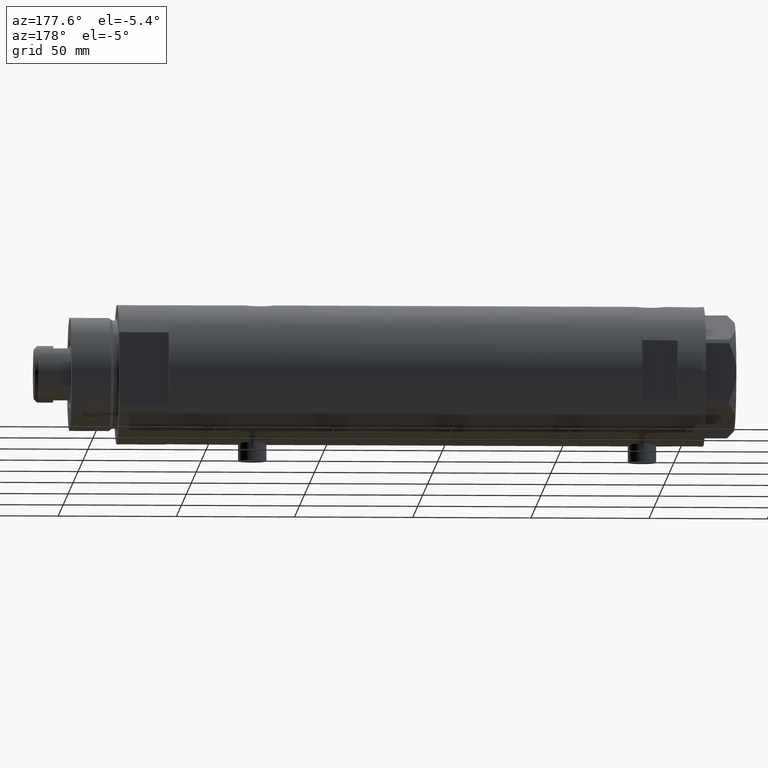
[diagram: clean part render]
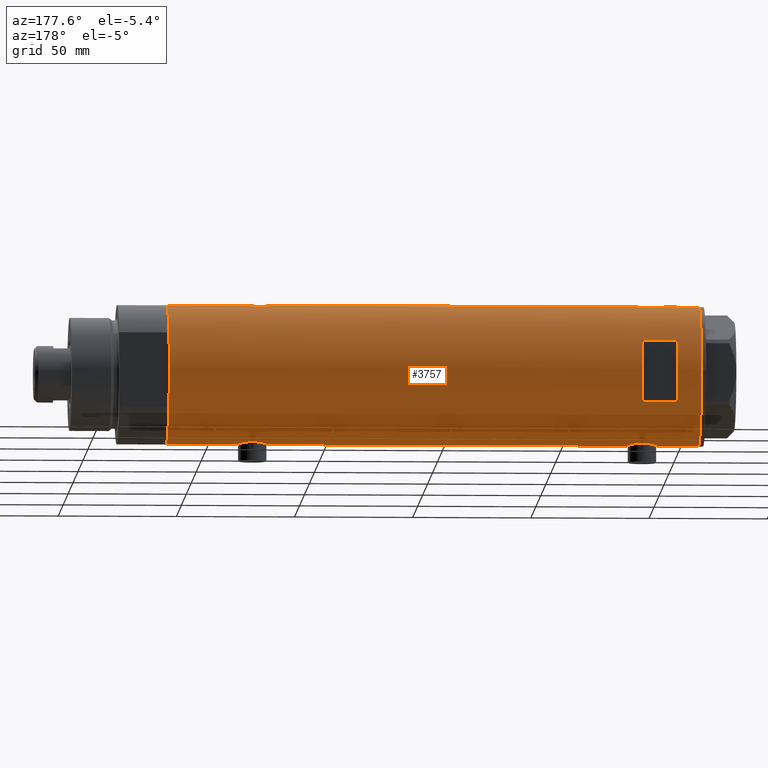
[diagram: same view with one face highlighted and labeled with its STEP entity id]
A machine part, auxiliary view. The second image highlights one B-rep face of the part: STEP entity #3757.
In plain terms, the highlighted cylindrical surface (partial cylindrical patch) has radius 29.5 mm, axis along (-1, -0, 0).
Its self-contained STEP definition (entity closure, byte-faithful):
#127 = CARTESIAN_POINT ( 'NONE',  ( 29.49693976195335665, 0.4910732786937767047, 99.58799094295619625 ) ) ;
#128 = CARTESIAN_POINT ( 'NONE',  ( 28.77473834757382321, 6.507156404236272174, -77.16162684060296328 ) ) ;
#137 = EDGE_CURVE ( 'NONE', #2132, #531, #4611, .T. ) ;
#150 = CARTESIAN_POINT ( 'NONE',  ( 29.31521205951408504, 3.327945423969218108, -66.66093490772910002 ) ) ;
#154 = CARTESIAN_POINT ( 'NONE',  ( -29.43341305963176424, 2.016871341298210663, -82.22974668998807601 ) ) ;
#198 = CARTESIAN_POINT ( 'NONE',  ( 28.59328333056173221, 7.258376466535483296, 94.05124667484831491 ) ) ;
#201 = CARTESIAN_POINT ( 'NONE',  ( 28.95615051861771860, 5.649234316505064690, -78.35715418746728744 ) ) ;
#220 = CARTESIAN_POINT ( 'NONE',  ( -29.49128627113591250, 0.8212788586050364659, 94.80923124908871102 ) ) ;
#221 = CARTESIAN_POINT ( 'NONE',  ( 28.80468126786725236, 6.368639251981151439, -69.43139489317928792 ) ) ;
#258 = B_SPLINE_CURVE_WITH_KNOTS ( 'NONE', 3,
 ( #3245, #604, #2523, #4477, #1894, #422, #4497, #4540, #852, #3604, #2252, #4077, #4020, #2186, #2663, #1259, #2364, #275, #3163, #1754, #4335, #3726, #4072, #1376, #3986, #198, #1400, #4290, #1718, #4462, #3719, #4217, #2335, #1013, #2343, #1153, #3056, #3087, #3108, #1990, #3500, #2049, #2743, #127, #1304, #2360 ),
 .UNSPECIFIED., .F., .F.,
 ( 4, 2, 2, 2, 2, 2, 2, 2, 2, 2, 2, 2, 2, 2, 2, 2, 2, 2, 2, 2, 2, 2, 4 ),
 ( 2.180446897674398484E-18, 0.001471587963626214742, 0.002207381945439317126, 0.002943175927252419943, 0.004414763890878623843, 0.005150557872691738370, 0.005886351854504852897, 0.007357939818131048991, 0.008829527781757242483, 0.009565321763570359612, 0.01030111574538347674, 0.01177270370900966763, 0.01324429167263586199, 0.01471587963626205808, 0.01545167361807515093, 0.01618746759988825071, 0.01692326158170134529, 0.01765905556351443986, 0.01913064352714060473, 0.02060223149076676613, 0.02207381945439293100, 0.02280961343620601170, 0.02354540741801909587 ),
 .UNSPECIFIED. ) ;
#275 = CARTESIAN_POINT ( 'NONE',  ( 28.65280969280607337, 7.019670864411701849, 89.44786831316893938 ) ) ;
#291 = CARTESIAN_POINT ( 'NONE',  ( -29.21113960567727119, 4.128622307952519499, 83.88985466616443887 ) ) ;
#297 = VECTOR ( 'NONE', #1606, 1000.000000000000000 ) ;
#327 = EDGE_CURVE ( 'NONE', #2915, #3616, #3589, .T. ) ;
#367 = ORIENTED_EDGE ( 'NONE', *, *, #4633, .T. ) ;
#369 = CARTESIAN_POINT ( 'NONE',  ( -29.41782704931130255, 2.208494778271264725, -70.44961702072824039 ) ) ;
#398 = EDGE_CURVE ( 'NONE', #1034, #4539, #4170, .T. ) ;
#418 = DIRECTION ( 'NONE',  ( 1.000000000000000000, -1.776356839400250267E-15, 0.000000000000000000 ) ) ;
#422 = CARTESIAN_POINT ( 'NONE',  ( 29.40165444879503909, 2.418426732012825653, 84.99632943565210041 ) ) ;
#437 = CARTESIAN_POINT ( 'NONE',  ( -29.50000000000000355, 3.612706708236066082E-15, -82.54999999999999716 ) ) ;
#442 = CARTESIAN_POINT ( 'NONE',  ( -29.50000000000000355, 3.612708057484692393E-15, -112.5999999999999943 ) ) ;
#483 = ORIENTED_EDGE ( 'NONE', *, *, #2708, .F. ) ;
#487 = CARTESIAN_POINT ( 'NONE',  ( -29.12335997091253503, 4.707903814166464862, -72.16921992621200843 ) ) ;
#508 = CARTESIAN_POINT ( 'NONE',  ( -28.96085629491408753, 5.616414220648533018, 91.37199639590005518 ) ) ;
#509 = CARTESIAN_POINT ( 'NONE',  ( 28.54350045195476326, 7.451747857568912004, -74.38266002875501215 ) ) ;
#512 = CARTESIAN_POINT ( 'NONE',  ( -29.25435602127559065, 3.814249285079244434, -81.26783729533993039 ) ) ;
#518 = VERTEX_POINT ( 'NONE', #4685 ) ;
#531 = VERTEX_POINT ( 'NONE', #1481 ) ;
#537 = CARTESIAN_POINT ( 'NONE',  ( 28.95590528945748687, 5.641861744747101781, -68.45235088071116536 ) ) ;
#543 = CARTESIAN_POINT ( 'NONE',  ( -29.12318177724206336, 4.709191267490246524, -80.42971050241654041 ) ) ;
#572 = CARTESIAN_POINT ( 'NONE',  ( 28.53063088452981688, 7.500206755597528030, -72.91171143095191098 ) ) ;
#593 = CARTESIAN_POINT ( 'NONE',  ( 29.05056090758568388, 5.132790299589563787, -78.87391726652083435 ) ) ;
#604 = CARTESIAN_POINT ( 'NONE',  ( 29.50000000000000355, 0.4977435627019816122, 84.59999999999999432 ) ) ;
#605 = DIRECTION ( 'NONE',  ( 0.000000000000000000, 0.000000000000000000, 1.000000000000000000 ) ) ;
#617 = CARTESIAN_POINT ( 'NONE',  ( -29.25435602127558354, 3.814249285079243101, 83.63216270466004687 ) ) ;
#619 = CARTESIAN_POINT ( 'NONE',  ( 29.40165444879503909, 2.418426732012825653, -80.50367056434788537 ) ) ;
#671 = CARTESIAN_POINT ( 'NONE',  ( -28.86473101544358144, 6.089252369705490331, 90.02332949166030573 ) ) ;
#680 = VERTEX_POINT ( 'NONE', #920 ) ;
#695 = CARTESIAN_POINT ( 'NONE',  ( -28.90008889585329399, 5.919338933253945889, 90.61640207058046315 ) ) ;
#707 = CARTESIAN_POINT ( 'NONE',  ( -29.25454443288369433, 3.812919888526639323, -71.33102620819090589 ) ) ;
#732 = CARTESIAN_POINT ( 'NONE',  ( -29.48933702067640894, 0.8192029158410168987, 82.40049277733302802 ) ) ;
#764 = DIRECTION ( 'NONE',  ( 0.000000000000000000, 1.000000000000000000, -4.704334850106595203E-15 ) ) ;
#778 = VERTEX_POINT ( 'NONE', #3324 ) ;
#784 = VERTEX_POINT ( 'NONE', #1500 ) ;
#785 = CARTESIAN_POINT ( 'NONE',  ( -29.37156641804198642, 2.775801885207113795, -70.68527430293366365 ) ) ;
#800 = CIRCLE ( 'NONE', #4275, 29.50000000000000355 ) ;
#832 = CARTESIAN_POINT ( 'NONE',  ( 0.000000000000000000, 0.000000000000000000, -112.5999999999999943 ) ) ;
#835 = CARTESIAN_POINT ( 'NONE',  ( -29.48933702067640539, 0.8192029158410167877, -82.49950722266696346 ) ) ;
#849 = CARTESIAN_POINT ( 'NONE',  ( 0.000000000000000000, 0.000000000000000000, 102.6000000000000085 ) ) ;
#852 = CARTESIAN_POINT ( 'NONE',  ( 29.26187100173484623, 3.763222966830672256, 85.59401741939379349 ) ) ;
#880 = CARTESIAN_POINT ( 'NONE',  ( 12.96148139681573319, 26.49999999999999645, -112.5999999999999943 ) ) ;
#890 = EDGE_CURVE ( 'NONE', #2754, #1205, #3095, .T. ) ;
#897 = CARTESIAN_POINT ( 'NONE',  ( -28.83035796536222506, 6.249836767212676669, -75.88856505377279404 ) ) ;
#920 = CARTESIAN_POINT ( 'NONE',  ( 29.50000000000000355, -8.867907290838723877E-21, -65.89999999999999147 ) ) ;
#940 = CARTESIAN_POINT ( 'NONE',  ( -29.46640581083894261, 1.421634556901802293, 94.68958891089417307 ) ) ;
#971 = CARTESIAN_POINT ( 'NONE',  ( -29.25454443288369077, 3.812919888526638879, 93.56897379180907137 ) ) ;
#972 = CARTESIAN_POINT ( 'NONE',  ( 29.31463363472445849, 3.333180401682688476, -80.13656844683043801 ) ) ;
#982 = ORIENTED_EDGE ( 'NONE', *, *, #1945, .F. ) ;
#992 = CARTESIAN_POINT ( 'NONE',  ( -29.38727827406289705, 2.583363936682820494, 82.90521973871331340 ) ) ;
#993 = CARTESIAN_POINT ( 'NONE',  ( 29.50000000000000355, -8.867907290838723877E-21, -65.89999999999999147 ) ) ;
#1013 = CARTESIAN_POINT ( 'NONE',  ( 28.95590528945748687, 5.641861744747101781, 97.04764911928884885 ) ) ;
#1017 = CARTESIAN_POINT ( 'NONE',  ( -29.01875661852155019, 5.308007315944001547, 85.29411629999104605 ) ) ;
#1034 = VERTEX_POINT ( 'NONE', #3608 ) ;
#1040 = EDGE_LOOP ( 'NONE', ( #3582, #1122, #4104, #1083, #483, #367, #2878, #1233, #1455, #2047, #3641, #4262 ) ) ;
#1047 = CARTESIAN_POINT ( 'NONE',  ( -28.83028740688046554, 6.250162243045982891, 88.19353934091623159 ) ) ;
#1050 = EDGE_CURVE ( 'NONE', #2915, #1657, #800, .T. ) ;
#1062 = LINE ( 'NONE', #3567, #3660 ) ;
#1083 = ORIENTED_EDGE ( 'NONE', *, *, #2753, .T. ) ;
#1122 = ORIENTED_EDGE ( 'NONE', *, *, #1501, .T. ) ;
#1133 = CARTESIAN_POINT ( 'NONE',  ( -29.50000000000000355, -5.649958391113855330E-16, 94.84999999999999432 ) ) ;
#1153 = CARTESIAN_POINT ( 'NONE',  ( 29.08308069045667565, 4.954707331652133284, 97.75173628376772683 ) ) ;
#1205 = VERTEX_POINT ( 'NONE', #2792 ) ;
#1214 = CARTESIAN_POINT ( 'NONE',  ( -28.86473101544358499, 6.089252369705491219, -74.87667050833968574 ) ) ;
#1216 = ORIENTED_EDGE ( 'NONE', *, *, #398, .F. ) ;
#1233 = ORIENTED_EDGE ( 'NONE', *, *, #3375, .F. ) ;
#1255 = CARTESIAN_POINT ( 'NONE',  ( -29.43187585711094556, 2.013330896687708815, 94.52040860029102021 ) ) ;
#1256 = CARTESIAN_POINT ( 'NONE',  ( 28.65280969280607337, 7.019670864411701849, -76.05213168683113167 ) ) ;
#1259 = CARTESIAN_POINT ( 'NONE',  ( 28.77473834757382321, 6.507156404236272174, 88.33837315939702250 ) ) ;
#1261 = CARTESIAN_POINT ( 'NONE',  ( -28.87539346372185634, 6.038655803256916421, -74.67547335916927409 ) ) ;
#1263 = LINE ( 'NONE', #4094, #4676 ) ;
#1272 = DIRECTION ( 'NONE',  ( 0.000000000000000000, 0.000000000000000000, 1.000000000000000000 ) ) ;
#1279 = EDGE_LOOP ( 'NONE', ( #1536, #3806, #1216, #982 ) ) ;
#1285 = CARTESIAN_POINT ( 'NONE',  ( 29.14416130131008131, 4.572185141625607407, -79.35025411765556669 ) ) ;
#1289 = CARTESIAN_POINT ( 'NONE',  ( -28.94521404191310765, 5.694822755760260868, -78.88333046401341164 ) ) ;
#1304 = CARTESIAN_POINT ( 'NONE',  ( 29.50000000000000355, 0.2453482418156857914, 99.59999999999998010 ) ) ;
#1305 = CARTESIAN_POINT ( 'NONE',  ( 28.59637095282950980, 7.245897747848937698, -75.35127374277611523 ) ) ;
#1330 = CARTESIAN_POINT ( 'NONE',  ( -29.45614208737133310, 1.620034288692375535, 94.63988643911606857 ) ) ;
#1331 = CARTESIAN_POINT ( 'NONE',  ( 29.43913092143246146, 1.954882548385547203, -66.14250765266646681 ) ) ;
#1355 = CARTESIAN_POINT ( 'NONE',  ( 29.40387556522357571, 2.422597899785628339, -66.28513960230164059 ) ) ;
#1376 = CARTESIAN_POINT ( 'NONE',  ( 28.53063088452981688, 7.500206755597528030, 92.58828856904804638 ) ) ;
#1400 = CARTESIAN_POINT ( 'NONE',  ( 28.62953349941190595, 7.116010646391501382, 94.51979460923098486 ) ) ;
#1402 = CARTESIAN_POINT ( 'NONE',  ( -29.45783481716065211, 1.627188261681546511, 82.55163589091053211 ) ) ;
#1445 = CARTESIAN_POINT ( 'NONE',  ( -29.46640581083894617, 1.421634556901802515, -70.21041108910578998 ) ) ;
#1454 = VERTEX_POINT ( 'NONE', #3349 ) ;
#1455 = ORIENTED_EDGE ( 'NONE', *, *, #2599, .F. ) ;
#1457 = CARTESIAN_POINT ( 'NONE',  ( -28.83909818927743629, 6.209925900742494065, 89.41778075451991015 ) ) ;
#1481 = CARTESIAN_POINT ( 'NONE',  ( -29.50000000000000355, 3.612706708236066082E-15, -82.54999999999999716 ) ) ;
#1497 = AXIS2_PLACEMENT_3D ( 'NONE', #4078, #1906, #764 ) ;
#1500 = CARTESIAN_POINT ( 'NONE',  ( 29.50000000000000355, 0.000000000000000000, 112.5999999999999943 ) ) ;
#1501 = EDGE_CURVE ( 'NONE', #1657, #531, #2394, .T. ) ;
#1504 = CARTESIAN_POINT ( 'NONE',  ( -29.50000000000000355, 3.612708057484692393E-15, 112.5999999999999943 ) ) ;
#1536 = ORIENTED_EDGE ( 'NONE', *, *, #890, .F. ) ;
#1604 = DIRECTION ( 'NONE',  ( 0.000000000000000000, 0.000000000000000000, 1.000000000000000000 ) ) ;
#1606 = DIRECTION ( 'NONE',  ( -0.000000000000000000, -0.000000000000000000, -1.000000000000000000 ) ) ;
#1623 = CARTESIAN_POINT ( 'NONE',  ( -28.96085629491409819, 5.616414220648533906, -73.52800360409990788 ) ) ;
#1648 = CARTESIAN_POINT ( 'NONE',  ( 29.14546206473281487, 4.578181670952607085, -67.43943908396705922 ) ) ;
#1657 = VERTEX_POINT ( 'NONE', #3362 ) ;
#1662 = EDGE_CURVE ( 'NONE', #4539, #2754, #3653, .T. ) ;
#1675 = CARTESIAN_POINT ( 'NONE',  ( -29.07990598238133373, 4.966177878631055975, -72.48314968353490428 ) ) ;
#1696 = CARTESIAN_POINT ( 'NONE',  ( 28.72066933684368095, 6.738715173607861431, -76.72836955953555105 ) ) ;
#1707 = B_SPLINE_CURVE_WITH_KNOTS ( 'NONE', 3,
 ( #3188, #4646, #4626, #3523, #2463, #619, #4677, #972, #3110, #4606, #1285, #3502, #593, #201, #3137, #128, #1696, #1256, #4260, #1305, #2744, #509, #3075, #572, #2725, #2417, #3939, #1991, #3541, #2771, #221, #2385, #3860, #537, #2025, #3467, #1648, #3159, #150, #1355, #1331, #2442, #1724, #2820, #4314, #993 ),
 .UNSPECIFIED., .F., .F.,
 ( 4, 2, 2, 2, 2, 2, 2, 2, 2, 2, 2, 2, 2, 2, 2, 2, 2, 2, 2, 2, 2, 2, 4 ),
 ( 2.180446897674398484E-18, 0.001471587963626214742, 0.002207381945439317126, 0.002943175927252419943, 0.004414763890878623843, 0.005150557872691738370, 0.005886351854504852897, 0.007357939818131048991, 0.008829527781757242483, 0.009565321763570359612, 0.01030111574538347674, 0.01177270370900966763, 0.01324429167263586199, 0.01471587963626205808, 0.01545167361807515093, 0.01618746759988825071, 0.01692326158170134529, 0.01765905556351443986, 0.01913064352714060473, 0.02060223149076676613, 0.02207381945439293100, 0.02280961343620601170, 0.02354540741801909587 ),
 .UNSPECIFIED. ) ;
#1718 = CARTESIAN_POINT ( 'NONE',  ( 28.72322018454530479, 6.726124749058844721, 95.42706852851001997 ) ) ;
#1724 = CARTESIAN_POINT ( 'NONE',  ( 29.48463566286631377, 0.9832945201638373378, -65.96062548237703993 ) ) ;
#1734 = CARTESIAN_POINT ( 'NONE',  ( -29.50000000000000355, -5.649958391113855330E-16, -70.04999999999998295 ) ) ;
#1754 = CARTESIAN_POINT ( 'NONE',  ( 28.59637095282950980, 7.245897747848937698, 90.14872625722388477 ) ) ;
#1790 = CARTESIAN_POINT ( 'NONE',  ( -29.50000000000000355, 0.2042768310961497746, 82.34999999999999432 ) ) ;
#1826 = CARTESIAN_POINT ( 'NONE',  ( -29.21045586191521082, 4.133246019522336390, -71.59426098433517893 ) ) ;
#1839 = CARTESIAN_POINT ( 'NONE',  ( -28.89816269917384872, 5.930588606439751054, 86.58529684457830911 ) ) ;
#1870 = VECTOR ( 'NONE', #3455, 1000.000000000000000 ) ;
#1878 = DIRECTION ( 'NONE',  ( 1.000000000000000000, 0.000000000000000000, 0.000000000000000000 ) ) ;
#1894 = CARTESIAN_POINT ( 'NONE',  ( 29.43668864566816268, 1.946133027943911076, 84.85269087298998159 ) ) ;
#1895 = DIRECTION ( 'NONE',  ( 1.000000000000000000, 0.000000000000000000, 0.000000000000000000 ) ) ;
#1906 = DIRECTION ( 'NONE',  ( 0.000000000000000000, 4.625929269271487689E-15, 1.000000000000000000 ) ) ;
#1918 = DIRECTION ( 'NONE',  ( 0.000000000000000000, 0.000000000000000000, 1.000000000000000000 ) ) ;
#1930 = VECTOR ( 'NONE', #3727, 1000.000000000000000 ) ;
#1945 = EDGE_CURVE ( 'NONE', #1205, #1034, #2947, .T. ) ;
#1946 = CARTESIAN_POINT ( 'NONE',  ( -29.21113960567727119, 4.128622307952520387, -81.01014533383550997 ) ) ;
#1971 = CARTESIAN_POINT ( 'NONE',  ( -28.83028740688047264, 6.250162243045982891, -76.70646065908368882 ) ) ;
#1972 = DIRECTION ( 'NONE',  ( -0.000000000000000000, -0.000000000000000000, -1.000000000000000000 ) ) ;
#1990 = CARTESIAN_POINT ( 'NONE',  ( 29.40387556522357571, 2.422597899785628339, 99.21486039769831677 ) ) ;
#1991 = CARTESIAN_POINT ( 'NONE',  ( 28.69800960089390074, 6.832546664705498429, -70.29724969708695426 ) ) ;
#1994 = CARTESIAN_POINT ( 'NONE',  ( -29.33379699751450786, 3.132328395749503169, -81.71232164486113447 ) ) ;
#2025 = CARTESIAN_POINT ( 'NONE',  ( 28.98787507734748914, 5.475789924529805397, -68.26910956623378013 ) ) ;
#2047 = ORIENTED_EDGE ( 'NONE', *, *, #3791, .F. ) ;
#2049 = CARTESIAN_POINT ( 'NONE',  ( 29.47533087885488712, 1.230190383163952461, 99.50252131767059893 ) ) ;
#2069 = CARTESIAN_POINT ( 'NONE',  ( -29.07990598238133018, 4.966177878631055975, 92.41685031646508719 ) ) ;
#2098 = CARTESIAN_POINT ( 'NONE',  ( -28.87539346372184923, 6.038655803256915533, 90.22452664083071738 ) ) ;
#2118 = CIRCLE ( 'NONE', #2197, 29.50000000000000355 ) ;
#2132 = VERTEX_POINT ( 'NONE', #3374 ) ;
#2150 = CARTESIAN_POINT ( 'NONE',  ( -29.43341305963176069, 2.016871341298213771, 82.67025331001194388 ) ) ;
#2186 = CARTESIAN_POINT ( 'NONE',  ( 28.95615051861771860, 5.649234316505064690, 87.14284581253269835 ) ) ;
#2197 = AXIS2_PLACEMENT_3D ( 'NONE', #4787, #1918, #1878 ) ;
#2206 = DIRECTION ( 'NONE',  ( 0.000000000000000000, 0.000000000000000000, 1.000000000000000000 ) ) ;
#2220 = LINE ( 'NONE', #3695, #3089 ) ;
#2242 = CARTESIAN_POINT ( 'NONE',  ( 29.50000000000000355, 0.000000000000000000, -112.5999999999999943 ) ) ;
#2248 = CARTESIAN_POINT ( 'NONE',  ( 29.50000000000000355, 0.000000000000000000, -112.5999999999999943 ) ) ;
#2252 = CARTESIAN_POINT ( 'NONE',  ( 29.14416130131008131, 4.572185141625607407, 86.14974588234440489 ) ) ;
#2312 = LINE ( 'NONE', #2248, #1930 ) ;
#2314 = CARTESIAN_POINT ( 'NONE',  ( -28.99931529802531216, 5.412890550536858747, -79.43129199055219658 ) ) ;
#2335 = CARTESIAN_POINT ( 'NONE',  ( 28.89369475765812112, 5.952264974793434860, 96.66950516186247455 ) ) ;
#2343 = CARTESIAN_POINT ( 'NONE',  ( 28.98787507734748914, 5.475789924529805397, 97.23089043376624829 ) ) ;
#2345 = CARTESIAN_POINT ( 'NONE',  ( -28.91416466586724709, 5.850419487802254181, -74.09172352366370262 ) ) ;
#2360 = CARTESIAN_POINT ( 'NONE',  ( 29.50000000000000355, -8.867907290838723877E-21, 99.59999999999999432 ) ) ;
#2364 = CARTESIAN_POINT ( 'NONE',  ( 28.72066933684368095, 6.738715173607861431, 88.77163044046442053 ) ) ;
#2365 = CARTESIAN_POINT ( 'NONE',  ( -28.89816269917384872, 5.930588606439751942, -78.31470315542169658 ) ) ;
#2385 = CARTESIAN_POINT ( 'NONE',  ( 28.86328010881651807, 6.097564286278117862, -69.02631709077299149 ) ) ;
#2388 = CARTESIAN_POINT ( 'NONE',  ( -28.99817753551064925, 5.423057650933435170, -73.16603848537405952 ) ) ;
#2394 = LINE ( 'NONE', #442, #1870 ) ;
#2416 = CARTESIAN_POINT ( 'NONE',  ( -29.37156641804199353, 2.775801885207114239, 94.21472569706631361 ) ) ;
#2417 = CARTESIAN_POINT ( 'NONE',  ( 28.59328333056173221, 7.258376466535483296, -71.44875332515168509 ) ) ;
#2441 = CARTESIAN_POINT ( 'NONE',  ( -29.21045586191521082, 4.133246019522336390, 93.30573901566481254 ) ) ;
#2442 = CARTESIAN_POINT ( 'NONE',  ( 29.47533087885488712, 1.230190383163952461, -65.99747868232940107 ) ) ;
#2462 = CARTESIAN_POINT ( 'NONE',  ( -29.50000000000000355, 3.612706708236066082E-15, 82.34999999999998010 ) ) ;
#2463 = CARTESIAN_POINT ( 'NONE',  ( 29.43668864566816268, 1.946133027943911076, -80.64730912701001841 ) ) ;
#2469 = CARTESIAN_POINT ( 'NONE',  ( -29.49128627113591605, 0.8212788586050359108, -70.09076875091126624 ) ) ;
#2485 = CARTESIAN_POINT ( 'NONE',  ( -29.07940225710134285, 4.969011347753391483, 84.78730265529817700 ) ) ;
#2511 = CARTESIAN_POINT ( 'NONE',  ( -29.31451746246149170, 3.307268797680003036, 83.29285158014991453 ) ) ;
#2523 = CARTESIAN_POINT ( 'NONE',  ( 29.48742029994219749, 0.9867701249543477937, 84.64905492505776863 ) ) ;
#2565 = CARTESIAN_POINT ( 'NONE',  ( -29.33500454540941149, 3.134363790739238542, -70.87737865536321635 ) ) ;
#2571 = CARTESIAN_POINT ( 'NONE',  ( 29.50000000000000355, 0.000000000000000000, -112.5999999999999943 ) ) ;
#2599 = EDGE_CURVE ( 'NONE', #518, #778, #258, .T. ) ;
#2613 = CYLINDRICAL_SURFACE ( 'NONE', #3398, 29.50000000000000355 ) ;
#2619 = CARTESIAN_POINT ( 'NONE',  ( 12.96148139681571898, 26.50000000000000355, 87.60000000000000853 ) ) ;
#2648 = DIRECTION ( 'NONE',  ( 0.000000000000000000, 0.000000000000000000, 1.000000000000000000 ) ) ;
#2659 = DIRECTION ( 'NONE',  ( 0.000000000000000000, 0.000000000000000000, 1.000000000000000000 ) ) ;
#2663 = CARTESIAN_POINT ( 'NONE',  ( 28.89325003604223951, 5.958922200807248437, 87.51915213504483404 ) ) ;
#2677 = CARTESIAN_POINT ( 'NONE',  ( -29.31451746246149881, 3.307268797680005257, -81.60714841985003432 ) ) ;
#2700 = VECTOR ( 'NONE', #3910, 1000.000000000000000 ) ;
#2708 = EDGE_CURVE ( 'NONE', #4493, #1454, #3682, .T. ) ;
#2723 = CARTESIAN_POINT ( 'NONE',  ( -29.33500454540941149, 3.134363790739238542, 94.02262134463677512 ) ) ;
#2725 = CARTESIAN_POINT ( 'NONE',  ( 28.54372006395177053, 7.450900983269902689, -72.41234264364082662 ) ) ;
#2743 = CARTESIAN_POINT ( 'NONE',  ( 29.48463566286631377, 0.9832945201638373378, 99.53937451762296007 ) ) ;
#2744 = CARTESIAN_POINT ( 'NONE',  ( 28.58083212642745607, 7.306745240314161727, -75.10953669436209168 ) ) ;
#2749 = CARTESIAN_POINT ( 'NONE',  ( -29.49787850362430675, 0.4089683628077636635, -82.54001026437013877 ) ) ;
#2753 = EDGE_CURVE ( 'NONE', #2132, #1454, #1062, .T. ) ;
#2754 = VERTEX_POINT ( 'NONE', #4313 ) ;
#2771 = CARTESIAN_POINT ( 'NONE',  ( 28.77649569280672992, 6.494415104660927973, -69.64065011183373599 ) ) ;
#2792 = CARTESIAN_POINT ( 'NONE',  ( -12.96148139681573319, 26.49999999999998934, 102.6000000000000085 ) ) ;
#2819 = CARTESIAN_POINT ( 'NONE',  ( -29.49787850362429964, 0.4089683628077637745, 82.35998973562986691 ) ) ;
#2820 = CARTESIAN_POINT ( 'NONE',  ( 29.49693976195335665, 0.4910732786937767047, -65.91200905704373270 ) ) ;
#2875 = CARTESIAN_POINT ( 'NONE',  ( 29.50000000000000355, -2.245054425791785664E-15, -80.90000000000000568 ) ) ;
#2878 = ORIENTED_EDGE ( 'NONE', *, *, #2966, .F. ) ;
#2915 = VERTEX_POINT ( 'NONE', #2242 ) ;
#2947 = CIRCLE ( 'NONE', #4737, 29.50000000000000355 ) ;
#2966 = EDGE_CURVE ( 'NONE', #784, #2970, #2118, .T. ) ;
#2970 = VERTEX_POINT ( 'NONE', #1504 ) ;
#3056 = CARTESIAN_POINT ( 'NONE',  ( 29.14546206473281487, 4.578181670952607085, 98.06056091603291236 ) ) ;
#3063 = CARTESIAN_POINT ( 'NONE',  ( -12.96148139681573319, 26.49999999999999645, -112.5999999999999943 ) ) ;
#3075 = CARTESIAN_POINT ( 'NONE',  ( 28.53073993742370362, 7.499791908386164607, -73.89461948433039140 ) ) ;
#3087 = CARTESIAN_POINT ( 'NONE',  ( 29.26131531204080360, 3.767377415172557864, 98.60345302571128911 ) ) ;
#3089 = VECTOR ( 'NONE', #2648, 1000.000000000000000 ) ;
#3095 = LINE ( 'NONE', #3063, #3554 ) ;
#3108 = CARTESIAN_POINT ( 'NONE',  ( 29.31521205951408504, 3.327945423969218108, 98.83906509227089998 ) ) ;
#3110 = CARTESIAN_POINT ( 'NONE',  ( 29.26187100173484623, 3.763222966830672256, -79.90598258060620651 ) ) ;
#3113 = CARTESIAN_POINT ( 'NONE',  ( -29.45783481716065921, 1.627188261681547399, -82.34836410908947357 ) ) ;
#3137 = CARTESIAN_POINT ( 'NONE',  ( 28.89325003604223951, 5.958922200807248437, -77.98084786495516596 ) ) ;
#3142 = CARTESIAN_POINT ( 'NONE',  ( -29.37021410611212957, 2.770135525807589261, -81.90634069022829067 ) ) ;
#3159 = CARTESIAN_POINT ( 'NONE',  ( 29.26131531204080360, 3.767377415172557864, -66.89654697428868246 ) ) ;
#3163 = CARTESIAN_POINT ( 'NONE',  ( 28.63233008736633778, 7.102474189478622968, 89.67814868761111313 ) ) ;
#3188 = CARTESIAN_POINT ( 'NONE',  ( 29.50000000000000355, -2.245054425791785664E-15, -80.90000000000000568 ) ) ;
#3245 = CARTESIAN_POINT ( 'NONE',  ( 29.50000000000000355, -2.245054425791785664E-15, 84.59999999999998010 ) ) ;
#3258 = CARTESIAN_POINT ( 'NONE',  ( -28.83925158138407596, 6.209208576703536764, 87.77801617131194689 ) ) ;
#3269 = CARTESIAN_POINT ( 'NONE',  ( -29.45614208737134021, 1.620034288692375757, -70.26011356088388027 ) ) ;
#3324 = CARTESIAN_POINT ( 'NONE',  ( 29.50000000000000355, -8.867907290838723877E-21, 99.59999999999999432 ) ) ;
#3349 = CARTESIAN_POINT ( 'NONE',  ( -29.50000000000000355, 3.612706708236066082E-15, 82.34999999999998010 ) ) ;
#3362 = CARTESIAN_POINT ( 'NONE',  ( -29.50000000000000355, 3.612708057484692393E-15, -112.5999999999999943 ) ) ;
#3374 = CARTESIAN_POINT ( 'NONE',  ( -29.50000000000000355, -5.649958391113855330E-16, -70.04999999999998295 ) ) ;
#3375 = EDGE_CURVE ( 'NONE', #778, #784, #1263, .T. ) ;
#3397 = FACE_BOUND ( 'NONE', #1279, .T. ) ;
#3398 = AXIS2_PLACEMENT_3D ( 'NONE', #832, #2659, #4117 ) ;
#3447 = CARTESIAN_POINT ( 'NONE',  ( -29.50000000000000355, -5.649958391113855330E-16, 94.84999999999999432 ) ) ;
#3450 = CARTESIAN_POINT ( 'NONE',  ( -28.87327190949137901, 6.049038945481233220, -77.92451728205175243 ) ) ;
#3455 = DIRECTION ( 'NONE',  ( 0.000000000000000000, 0.000000000000000000, 1.000000000000000000 ) ) ;
#3467 = CARTESIAN_POINT ( 'NONE',  ( 29.08308069045667565, 4.954707331652133284, -67.74826371623228738 ) ) ;
#3470 = CARTESIAN_POINT ( 'NONE',  ( -29.38727827406289705, 2.583363936682820494, -81.99478026128664965 ) ) ;
#3500 = CARTESIAN_POINT ( 'NONE',  ( 29.43913092143246146, 1.954882548385547203, 99.35749234733353319 ) ) ;
#3502 = CARTESIAN_POINT ( 'NONE',  ( 29.08204711695422162, 4.951923910293533737, -79.03816021594298036 ) ) ;
#3505 = CARTESIAN_POINT ( 'NONE',  ( -29.01875661852156085, 5.308007315944005100, -79.60588370000893121 ) ) ;
#3523 = CARTESIAN_POINT ( 'NONE',  ( 29.45150476095192360, 1.707859807438206312, -80.70707118656062562 ) ) ;
#3541 = CARTESIAN_POINT ( 'NONE',  ( 28.72322018454530479, 6.726124749058844721, -70.07293147149003687 ) ) ;
#3554 = VECTOR ( 'NONE', #1272, 1000.000000000000000 ) ;
#3567 = CARTESIAN_POINT ( 'NONE',  ( -29.50000000000000355, 3.612708057484692393E-15, -112.5999999999999943 ) ) ;
#3578 = CARTESIAN_POINT ( 'NONE',  ( -29.50000000000001421, 0.4142160563134685836, -70.05000000000001137 ) ) ;
#3582 = ORIENTED_EDGE ( 'NONE', *, *, #1050, .T. ) ;
#3589 = LINE ( 'NONE', #2571, #2700 ) ;
#3604 = CARTESIAN_POINT ( 'NONE',  ( 29.17471722935868783, 4.373569479501283830, 86.00231157590984310 ) ) ;
#3608 = CARTESIAN_POINT ( 'NONE',  ( 12.96148139681573319, 26.49999999999998934, 102.6000000000000085 ) ) ;
#3616 = VERTEX_POINT ( 'NONE', #2875 ) ;
#3641 = ORIENTED_EDGE ( 'NONE', *, *, #3881, .F. ) ;
#3653 = CIRCLE ( 'NONE', #1497, 29.50000000000000355 ) ;
#3660 = VECTOR ( 'NONE', #2206, 1000.000000000000000 ) ;
#3676 = CARTESIAN_POINT ( 'NONE',  ( -28.87327190949138256, 6.049038945481234109, 86.97548271794826746 ) ) ;
#3682 = B_SPLINE_CURVE_WITH_KNOTS ( 'NONE', 3,
 ( #3447, #4259, #220, #940, #1330, #1255, #4293, #2416, #2723, #971, #2441, #3915, #2069, #4213, #508, #3938, #695, #2098, #671, #1457, #4038, #1047, #3258, #3676, #1839, #4409, #4011, #4332, #1017, #2485, #4716, #291, #617, #2511, #4675, #4747, #992, #2150, #1402, #3964, #732, #2819, #1790, #2462 ),
 .UNSPECIFIED., .F., .F.,
 ( 4, 2, 2, 2, 2, 2, 2, 2, 2, 2, 2, 2, 2, 2, 2, 2, 2, 2, 2, 2, 2, 4 ),
 ( 5.488367186017542912E-19, 0.001224749128302359208, 0.001837123692453538487, 0.002449498256604717549, 0.003674247384907060928, 0.004898996513209404741, 0.006123745641511747252, 0.007348494769814091498, 0.007960869333965264055, 0.008573243898116434877, 0.009797993026418740092, 0.01102274215472104531, 0.01224749128302334705, 0.01285986584717448145, 0.01347224041132561584, 0.01469698953962791585, 0.01592173866793021586, 0.01653411323208136413, 0.01714648779623251240, 0.01837123692453481241, 0.01898361148868596762, 0.01959598605283711936 ),
 .UNSPECIFIED. ) ;
#3695 = CARTESIAN_POINT ( 'NONE',  ( -29.50000000000000355, 3.612708057484692393E-15, -112.5999999999999943 ) ) ;
#3719 = CARTESIAN_POINT ( 'NONE',  ( 28.80468126786725236, 6.368639251981151439, 96.06860510682072629 ) ) ;
#3726 = CARTESIAN_POINT ( 'NONE',  ( 28.54350045195476326, 7.451747857568912004, 91.11733997124495943 ) ) ;
#3727 = DIRECTION ( 'NONE',  ( 0.000000000000000000, 0.000000000000000000, 1.000000000000000000 ) ) ;
#3757 = ADVANCED_FACE ( 'NONE', ( #3397, #4471 ), #2613, .T. ) ;
#3767 = CARTESIAN_POINT ( 'NONE',  ( -28.90008889585329044, 5.919338933253946777, -74.28359792941951412 ) ) ;
#3791 = EDGE_CURVE ( 'NONE', #680, #518, #2312, .T. ) ;
#3806 = ORIENTED_EDGE ( 'NONE', *, *, #1662, .F. ) ;
#3842 = CARTESIAN_POINT ( 'NONE',  ( -28.96258065965880846, 5.606121065329687347, -79.07051985068761724 ) ) ;
#3860 = CARTESIAN_POINT ( 'NONE',  ( 28.89369475765812112, 5.952264974793434860, -68.83049483813751124 ) ) ;
#3864 = CARTESIAN_POINT ( 'NONE',  ( -28.83909818927743984, 6.209925900742494065, -75.48221924548005290 ) ) ;
#3881 = EDGE_CURVE ( 'NONE', #3616, #680, #1707, .T. ) ;
#3910 = DIRECTION ( 'NONE',  ( 0.000000000000000000, 0.000000000000000000, 1.000000000000000000 ) ) ;
#3915 = CARTESIAN_POINT ( 'NONE',  ( -29.12335997091253148, 4.707903814166463086, 92.73078007378799725 ) ) ;
#3927 = CARTESIAN_POINT ( 'NONE',  ( 0.000000000000000000, 0.000000000000000000, -112.5999999999999943 ) ) ;
#3938 = CARTESIAN_POINT ( 'NONE',  ( -28.91416466586725065, 5.850419487802252405, 90.80827647633628885 ) ) ;
#3939 = CARTESIAN_POINT ( 'NONE',  ( 28.62953349941190595, 7.116010646391501382, -70.98020539076900093 ) ) ;
#3964 = CARTESIAN_POINT ( 'NONE',  ( -29.48289442777306846, 1.024392307325220797, 82.43111777471298751 ) ) ;
#3986 = CARTESIAN_POINT ( 'NONE',  ( 28.54372006395177053, 7.450900983269902689, 93.08765735635915917 ) ) ;
#4011 = CARTESIAN_POINT ( 'NONE',  ( -28.96258065965880846, 5.606121065329690012, 85.82948014931236003 ) ) ;
#4020 = CARTESIAN_POINT ( 'NONE',  ( 29.05056090758568388, 5.132790299589563787, 86.62608273347915144 ) ) ;
#4038 = CARTESIAN_POINT ( 'NONE',  ( -28.83035796536221440, 6.249836767212674005, 89.01143494622721164 ) ) ;
#4072 = CARTESIAN_POINT ( 'NONE',  ( 28.53073993742370362, 7.499791908386164607, 91.60538051566963702 ) ) ;
#4077 = CARTESIAN_POINT ( 'NONE',  ( 29.08204711695422162, 4.951923910293533737, 86.46183978405699122 ) ) ;
#4078 = CARTESIAN_POINT ( 'NONE',  ( 0.000000000000000000, 0.000000000000000000, 87.60000000000010800 ) ) ;
#4094 = CARTESIAN_POINT ( 'NONE',  ( 29.50000000000000355, 0.000000000000000000, -112.5999999999999943 ) ) ;
#4104 = ORIENTED_EDGE ( 'NONE', *, *, #137, .F. ) ;
#4117 = DIRECTION ( 'NONE',  ( 1.000000000000000000, 0.000000000000000000, 0.000000000000000000 ) ) ;
#4145 = CARTESIAN_POINT ( 'NONE',  ( -29.48289442777306490, 1.024392307325220353, -82.46888222528697554 ) ) ;
#4166 = CARTESIAN_POINT ( 'NONE',  ( -28.83925158138407596, 6.209208576703537652, -77.12198382868805879 ) ) ;
#4170 = LINE ( 'NONE', #880, #297 ) ;
#4213 = CARTESIAN_POINT ( 'NONE',  ( -28.99817753551064570, 5.423057650933436058, 91.73396151462590353 ) ) ;
#4217 = CARTESIAN_POINT ( 'NONE',  ( 28.86328010881651807, 6.097564286278117862, 96.47368290922692324 ) ) ;
#4239 = CARTESIAN_POINT ( 'NONE',  ( -29.50000000000000711, 0.2042768310961498301, -82.55000000000001137 ) ) ;
#4259 = CARTESIAN_POINT ( 'NONE',  ( -29.50000000000000711, 0.4142160563134686946, 94.85000000000000853 ) ) ;
#4260 = CARTESIAN_POINT ( 'NONE',  ( 28.63233008736633778, 7.102474189478622968, -75.82185131238890108 ) ) ;
#4262 = ORIENTED_EDGE ( 'NONE', *, *, #327, .F. ) ;
#4275 = AXIS2_PLACEMENT_3D ( 'NONE', #3927, #605, #1895 ) ;
#4290 = CARTESIAN_POINT ( 'NONE',  ( 28.69800960089390074, 6.832546664705498429, 95.20275030291307417 ) ) ;
#4293 = CARTESIAN_POINT ( 'NONE',  ( -29.41782704931129544, 2.208494778271264725, 94.45038297927172266 ) ) ;
#4313 = CARTESIAN_POINT ( 'NONE',  ( -12.96148139681574030, 26.50000000000000355, 87.60000000000000853 ) ) ;
#4314 = CARTESIAN_POINT ( 'NONE',  ( 29.50000000000000355, 0.2453482418156857914, -65.89999999999999147 ) ) ;
#4332 = CARTESIAN_POINT ( 'NONE',  ( -28.99931529802531571, 5.412890550536858747, 85.46870800944782331 ) ) ;
#4335 = CARTESIAN_POINT ( 'NONE',  ( 28.58083212642745607, 7.306745240314161727, 90.39046330563792253 ) ) ;
#4409 = CARTESIAN_POINT ( 'NONE',  ( -28.94521404191312541, 5.694822755760260868, 86.01666953598655141 ) ) ;
#4462 = CARTESIAN_POINT ( 'NONE',  ( 28.77649569280672992, 6.494415104660927973, 95.85934988816624980 ) ) ;
#4471 = FACE_OUTER_BOUND ( 'NONE', #1040, .T. ) ;
#4477 = CARTESIAN_POINT ( 'NONE',  ( 29.45150476095192360, 1.707859807438206312, 84.79292881343934596 ) ) ;
#4493 = VERTEX_POINT ( 'NONE', #1133 ) ;
#4497 = CARTESIAN_POINT ( 'NONE',  ( 29.38138226830143651, 2.652609128011945927, 85.08045398040326290 ) ) ;
#4539 = VERTEX_POINT ( 'NONE', #2619 ) ;
#4540 = CARTESIAN_POINT ( 'NONE',  ( 29.31463363472445849, 3.333180401682688476, 85.36343155316953357 ) ) ;
#4606 = CARTESIAN_POINT ( 'NONE',  ( 29.17471722935868783, 4.373569479501283830, -79.49768842409015690 ) ) ;
#4608 = CARTESIAN_POINT ( 'NONE',  ( -29.07940225710134285, 4.969011347753393260, -80.11269734470184289 ) ) ;
#4611 = B_SPLINE_CURVE_WITH_KNOTS ( 'NONE', 3,
 ( #1734, #3578, #2469, #1445, #3269, #4759, #369, #785, #2565, #707, #1826, #487, #1675, #2388, #1623, #2345, #3767, #1261, #1214, #3864, #897, #1971, #4166, #3450, #2365, #1289, #3842, #2314, #3505, #4608, #543, #1946, #512, #2677, #1994, #3142, #3470, #154, #3113, #4145, #835, #2749, #4239, #437 ),
 .UNSPECIFIED., .F., .F.,
 ( 4, 2, 2, 2, 2, 2, 2, 2, 2, 2, 2, 2, 2, 2, 2, 2, 2, 2, 2, 2, 2, 4 ),
 ( 5.488367186017542912E-19, 0.001224749128302296758, 0.001837123692453444595, 0.002449498256604592649, 0.003674247384906904803, 0.004898996513209217391, 0.006123745641511529544, 0.007348494769813842566, 0.007960869333964998643, 0.008573243898116155587, 0.009797993026418507639, 0.01102274215472085969, 0.01224749128302321348, 0.01285986584717438777, 0.01347224041132556553, 0.01469698953962788462, 0.01592173866793020545, 0.01653411323208136413, 0.01714648779623252281, 0.01837123692453482629, 0.01898361148868597109, 0.01959598605283711936 ),
 .UNSPECIFIED. ) ;
#4626 = CARTESIAN_POINT ( 'NONE',  ( 29.48742029994219749, 0.9867701249543477937, -80.85094507494221716 ) ) ;
#4633 = EDGE_CURVE ( 'NONE', #4493, #2970, #2220, .T. ) ;
#4646 = CARTESIAN_POINT ( 'NONE',  ( 29.50000000000000355, 0.4977435627019816122, -80.90000000000001990 ) ) ;
#4675 = CARTESIAN_POINT ( 'NONE',  ( -29.33379699751450076, 3.132328395749502725, 83.18767835513884279 ) ) ;
#4676 = VECTOR ( 'NONE', #1604, 1000.000000000000000 ) ;
#4677 = CARTESIAN_POINT ( 'NONE',  ( 29.38138226830143651, 2.652609128011945927, -80.41954601959670867 ) ) ;
#4685 = CARTESIAN_POINT ( 'NONE',  ( 29.50000000000000355, -2.245054425791785664E-15, 84.59999999999998010 ) ) ;
#4716 = CARTESIAN_POINT ( 'NONE',  ( -29.12318177724206691, 4.709191267490246524, 84.47028949758345107 ) ) ;
#4737 = AXIS2_PLACEMENT_3D ( 'NONE', #849, #1972, #418 ) ;
#4747 = CARTESIAN_POINT ( 'NONE',  ( -29.37021410611213668, 2.770135525807589261, 82.99365930977168659 ) ) ;
#4759 = CARTESIAN_POINT ( 'NONE',  ( -29.43187585711095977, 2.013330896687708815, -70.37959139970894284 ) ) ;
#4787 = CARTESIAN_POINT ( 'NONE',  ( 0.000000000000000000, 0.000000000000000000, 112.5999999999999943 ) ) ;